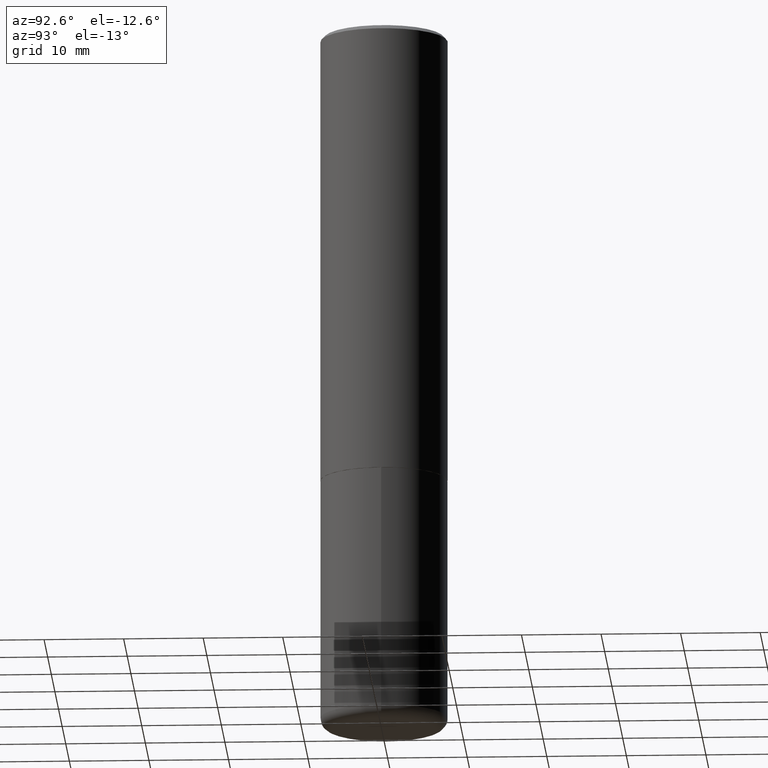
[diagram: clean part render]
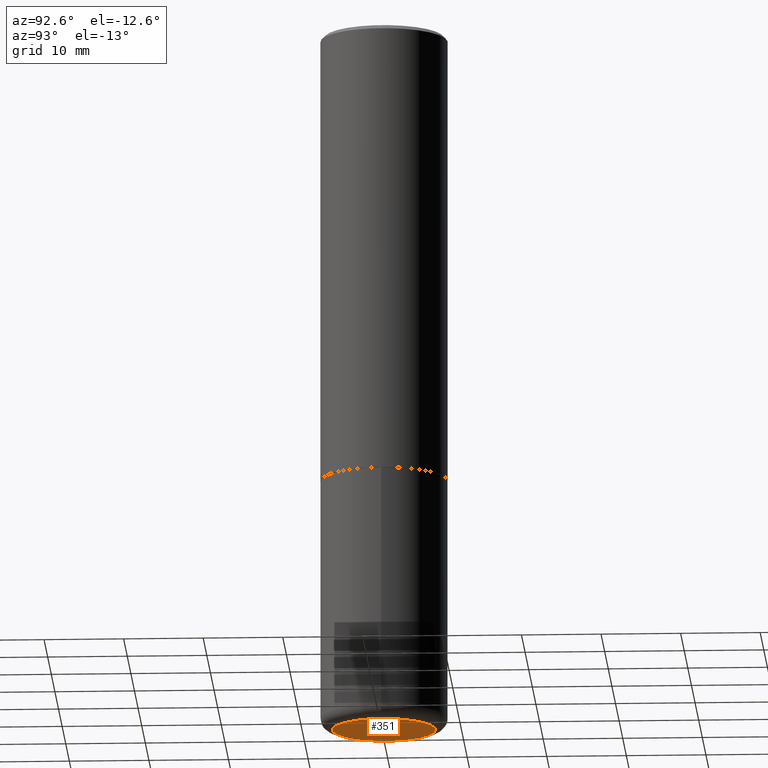
[diagram: same view with one face highlighted and labeled with its STEP entity id]
A machine part, auxiliary view. The second image highlights one B-rep face of the part: STEP entity #351.
In plain terms, the highlighted planar face has unit normal (0, -0, -1).
Its self-contained STEP definition (entity closure, byte-faithful):
#4 = CARTESIAN_POINT ( 'NONE',  ( 8.568678149992099474E-29, -1.223380146317249786E-14, -3.503899999999999793 ) ) ;
#6 = DIRECTION ( 'NONE',  ( 1.000000000000000000, -6.982962677686263555E-15, 0.000000000000000000 ) ) ;
#61 = CARTESIAN_POINT ( 'NONE',  ( 8.568678149992099474E-29, -1.223380146317249786E-14, -3.503899999999999793 ) ) ;
#65 = DIRECTION ( 'NONE',  ( -2.445468806185136597E-29, 3.491481338843145583E-15, 1.000000000000000000 ) ) ;
#66 = PLANE ( 'NONE',  #310 ) ;
#77 = DIRECTION ( 'NONE',  ( -2.445468806185136597E-29, 3.491481338843145583E-15, 1.000000000000000000 ) ) ;
#82 = ORIENTED_EDGE ( 'NONE', *, *, #105, .F. ) ;
#94 = FACE_OUTER_BOUND ( 'NONE', #299, .T. ) ;
#105 = EDGE_CURVE ( 'NONE', #236, #343, #155, .T. ) ;
#122 = AXIS2_PLACEMENT_3D ( 'NONE', #330, #77, #6 ) ;
#133 = DIRECTION ( 'NONE',  ( 2.438088387897960049E-29, -3.491481338843145188E-15, -1.000000000000000000 ) ) ;
#145 = ORIENTED_EDGE ( 'NONE', *, *, #384, .F. ) ;
#155 = CIRCLE ( 'NONE', #386, 0.2558500000000000218 ) ;
#156 = DIRECTION ( 'NONE',  ( 1.000000000000000000, -6.982962677686263555E-15, 0.000000000000000000 ) ) ;
#165 = CARTESIAN_POINT ( 'NONE',  ( 0.2558500000000000218, -1.402039246425852851E-14, -3.503899999999999793 ) ) ;
#236 = VERTEX_POINT ( 'NONE', #254 ) ;
#249 = CIRCLE ( 'NONE', #122, 0.2558500000000000218 ) ;
#254 = CARTESIAN_POINT ( 'NONE',  ( -0.2558500000000000218, -1.010273922175035445E-14, -3.503899999999999793 ) ) ;
#299 = EDGE_LOOP ( 'NONE', ( #145, #82 ) ) ;
#310 = AXIS2_PLACEMENT_3D ( 'NONE', #4, #133, #383 ) ;
#330 = CARTESIAN_POINT ( 'NONE',  ( 8.568678149992099474E-29, -1.223380146317249786E-14, -3.503899999999999793 ) ) ;
#343 = VERTEX_POINT ( 'NONE', #165 ) ;
#351 = ADVANCED_FACE ( 'NONE', ( #94 ), #66, .T. ) ;
#383 = DIRECTION ( 'NONE',  ( -1.000000000000000000, 6.982962677686265922E-15, -4.876176775795935793E-29 ) ) ;
#384 = EDGE_CURVE ( 'NONE', #343, #236, #249, .T. ) ;
#386 = AXIS2_PLACEMENT_3D ( 'NONE', #61, #65, #156 ) ;